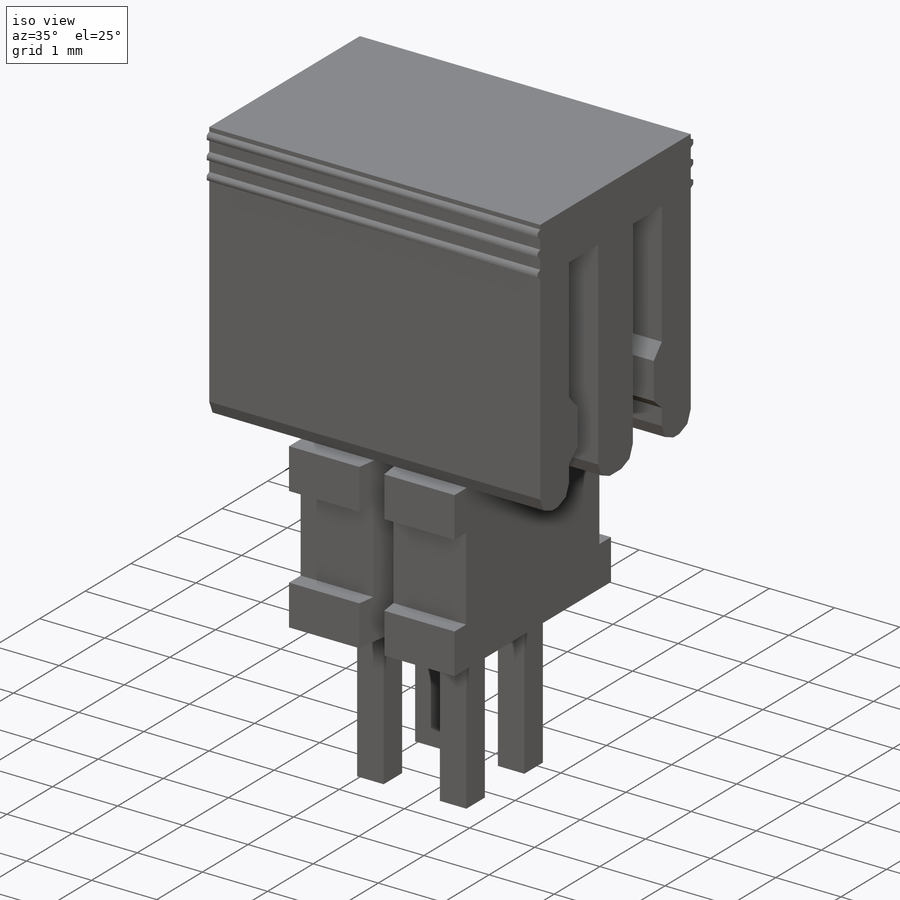
[diagram: iso view]
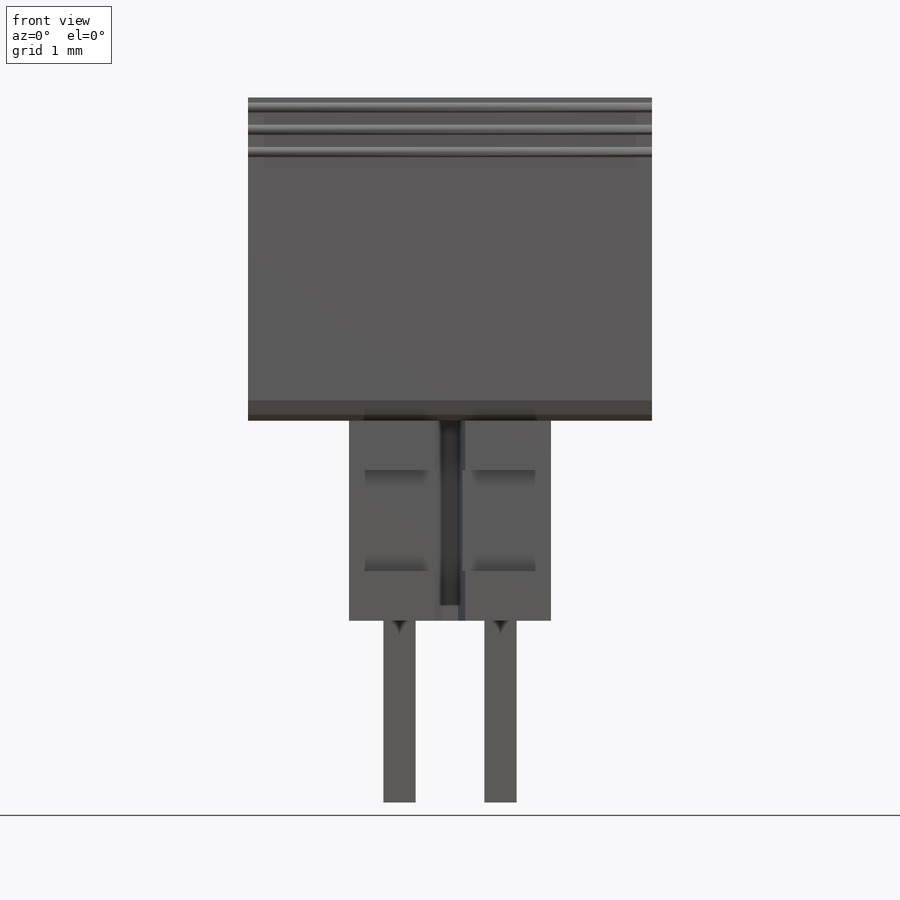
[diagram: front view]
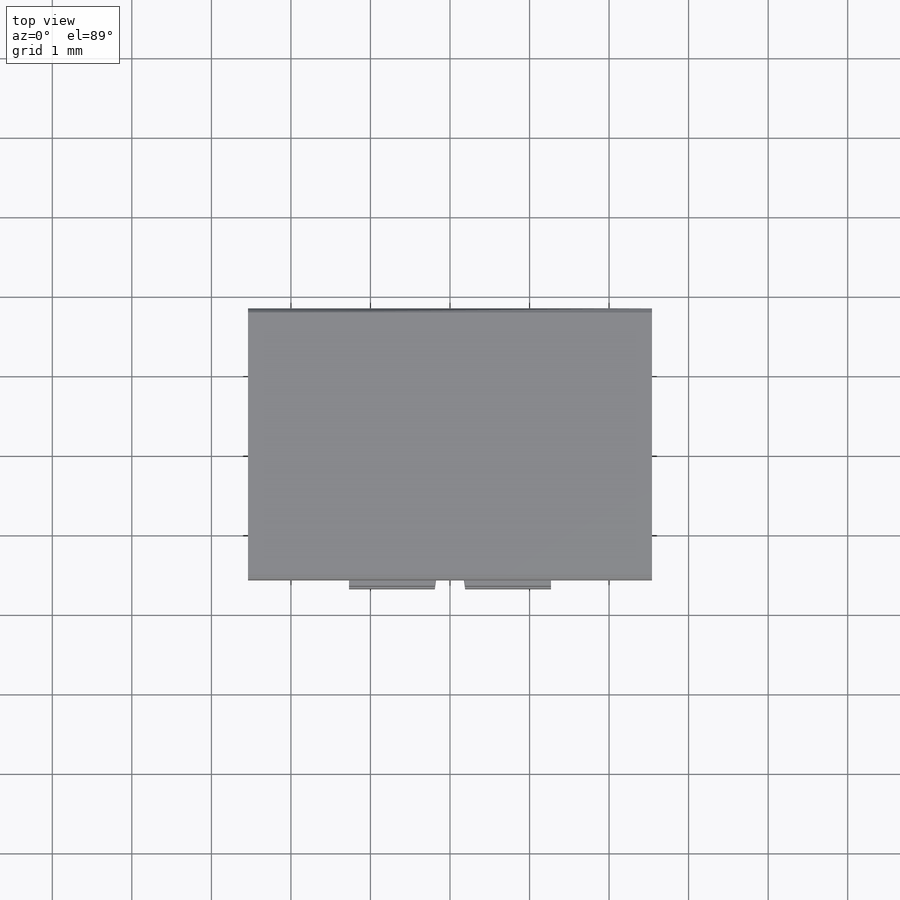
[diagram: top view]
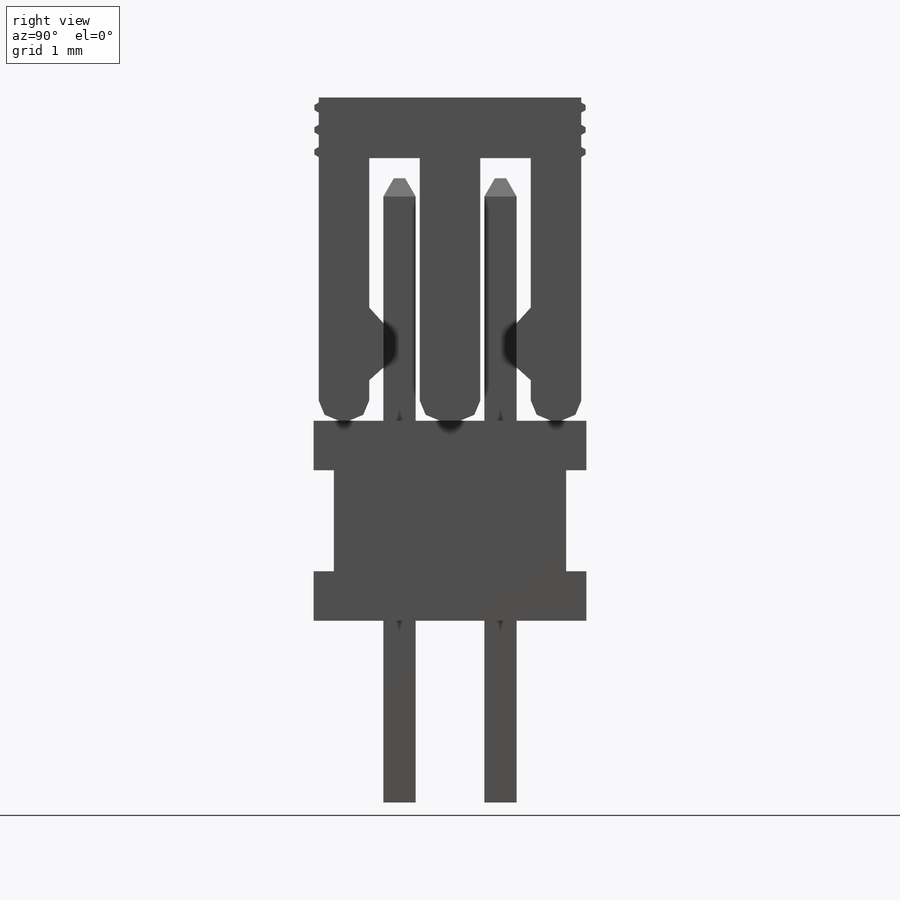
[diagram: right view]
SOLIDWORKS PART (.sldprt)
format: sldprt  version: not decoded by parser v0  size: 892,416 bytes
history: native  units: mm
features: sketch x15, plane x4, extrude x4, cut_extrude x3, pattern_linear x2, material x1, chamfer x1 (+12 scaffold rows collapsed)
feature tree (42):
  scaffold x12  (default folders/planes/origin — collapsed)
  material  "Material <not specified>"
  plane  "Side"
  sketch  "Sketch1"  dims[D1=3.429mm D2=2.54mm]
  extrude  "Base"  Depth=2.5146mm
  sketch  "Sketch2"  dims[D1=0.635mm D2=0.2032mm D3=0.381mm D4=1.27mm]
  cut_extrude  "Snap Groove"  [1 undecoded]
  sketch  "Sketch3"  dims[D1=2.921mm D2=1.27mm]
  cut_extrude  "Side Groove"  [1 undecoded]
  plane  "Pos 1 Plane"  Offset=0.635mm
  sketch  "Sketch4"  dims[D1=0.4064mm D2=3.048mm D3=0.635mm]
  extrude  "Pin Post"  Depth=0.4064mm
  chamfer  "Post Tip"  Distance=0.2286mm Angle=30deg
  pattern_linear  "Post Pattern"  Spacing1=1.27mm Spacing2=50mm  [1 undecoded]
  sketch  "Sketch5"  dims[D1=0.4064mm D2=2.286mm]
  extrude  "-TH Tail"  Depth=0.4064mm
  pattern_linear  "-TH Tail Pattern"  Spacing1=1.27mm Spacing2=50mm  [1 undecoded]
  sketch  "Sketch23"  dims[D2=0.635mm D1=0.4064mm D3=5.842mm]
  sketch  "Sketch29"  dims[D3=0.4064mm D4=0.8128mm D8=0.4064mm D9=0.8128mm D1=2.286mm D2=0.508mm D6=0.8128mm D7=5.334mm D10=2.54mm D5=0.4064mm D11=0.4064mm]
  sketch  "Sketch33"  dims[c1.D1=0.4064mm c1.D2=0.8128mm c1.D5=0.4064mm c1.D7=0.4064mm c1.D3=0.8128mm c1.D4=5.334mm c2.D5=2.54mm c2.D8=1.0668mm c2.D9=2.286mm c2.D6=0.4064mm c2.D10=0.4064mm]
  sketch  "Sketch6"  dims[D1=0.889mm D2=1.27mm]
  sketch  "Sketch28"  dims[c1.D1=0.889mm c1.D2=0.889mm c2.D1=0.0mm c2.D2=1.27mm]
  sketch  "Sketch16"  dims[D1=5.08mm D2=5.08mm]
  plane  "Shroud Plane"  Offset=0.254mm
  sketch  "Sketch7"  dims[c1.D1=3.5306mm c1.D2=6.731mm c1.D3=1.143mm c1.D4=4.7752mm c1.D5=1.2827mm c2.D1=3.5306mm]
  sketch  "Sketch24"  dims[c1.D10=0.254mm c1.D11=0.254mm c1.D13=0.254mm c1.D1=~0.218549mm c2.D1=42.0deg c2.D2=~0.143306mm c3.D2=48.0deg c4.D2=0.508mm c4.D3=0.5588mm c4.D4=0.635mm c4.D5=0.1778mm c4.D6=0.762mm c4.D7=4.064mm c4.D8=4.318mm c4.D9=3.302mm c5.D8=3.302mm c5.D6=3.302mm c5.D7=0.762mm c5.D9=3.302mm c6.D8=4.064mm c6.D11=3.81mm c6.D6=4.064mm c7.D8=3.302mm c7.D11=3.302mm c7.D7=5.842mm c8.D11=0.762mm c8.D12=0.762mm]
  extrude  "-P"  Depth=5.08mm
  sketch  "Sketch43"  dims[D1=0.127mm D2=0.2794mm D3=0.2794mm D4=0.127mm]
  cut_extrude  "PPP-25 cut"  [1 undecoded]
  sketch  "Sketch31"  dims[D1=~5.00126mm D2=1.2446mm]
  plane  "-EJ Plane"  Offset=2.824998mm
decode coverage: 22 of 25 modeling features carry decoded parameters
note: ~ marks probable driven/reference dimensions
note: 5 parameter values undecoded
summary: no parameter record found for 3 features
note: suppression state not decoded; provenance and decode notes live in map.json
